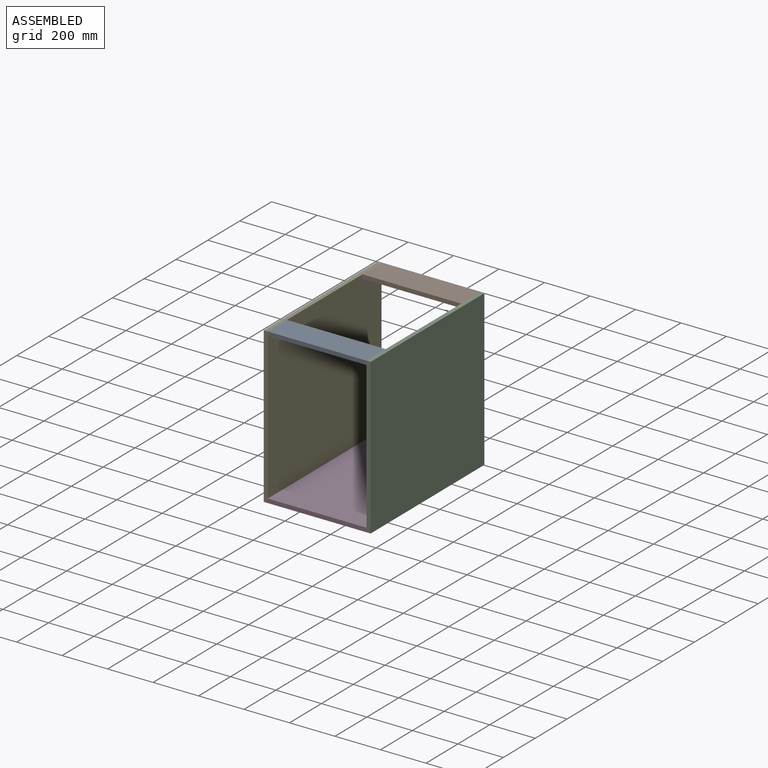
[diagram: assembled view]
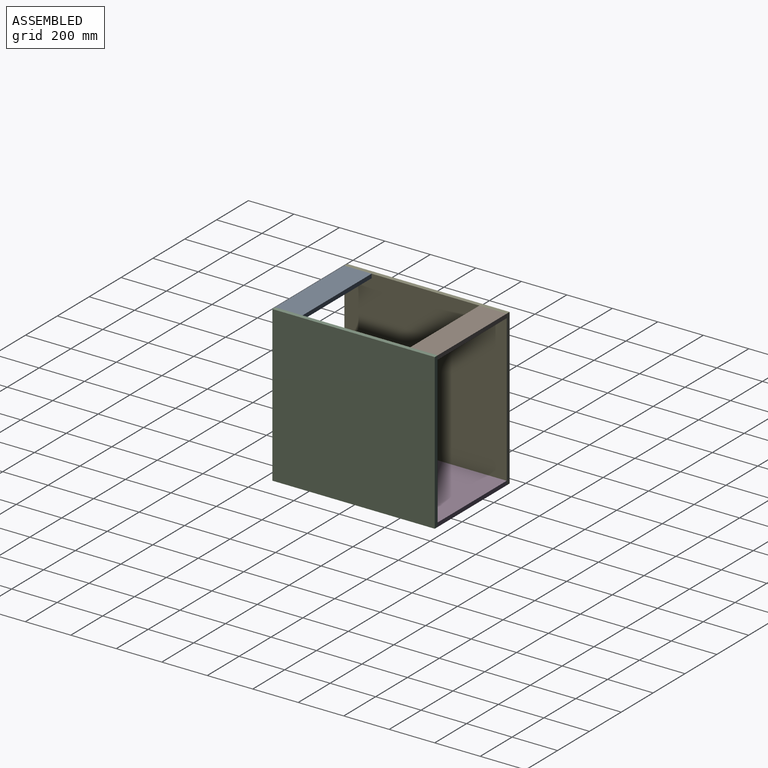
[diagram: assembled view, second angle]
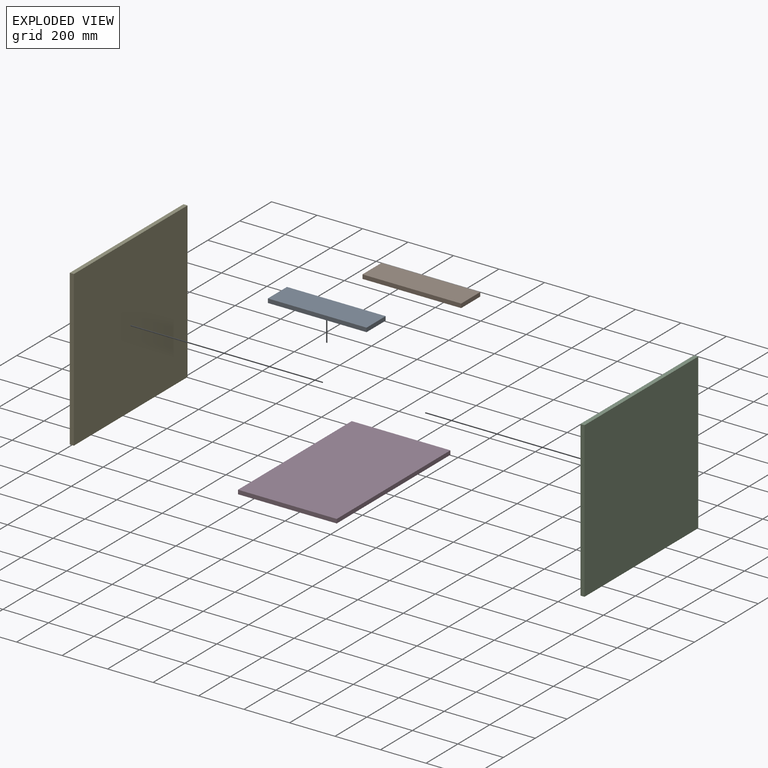
[diagram: exploded view]
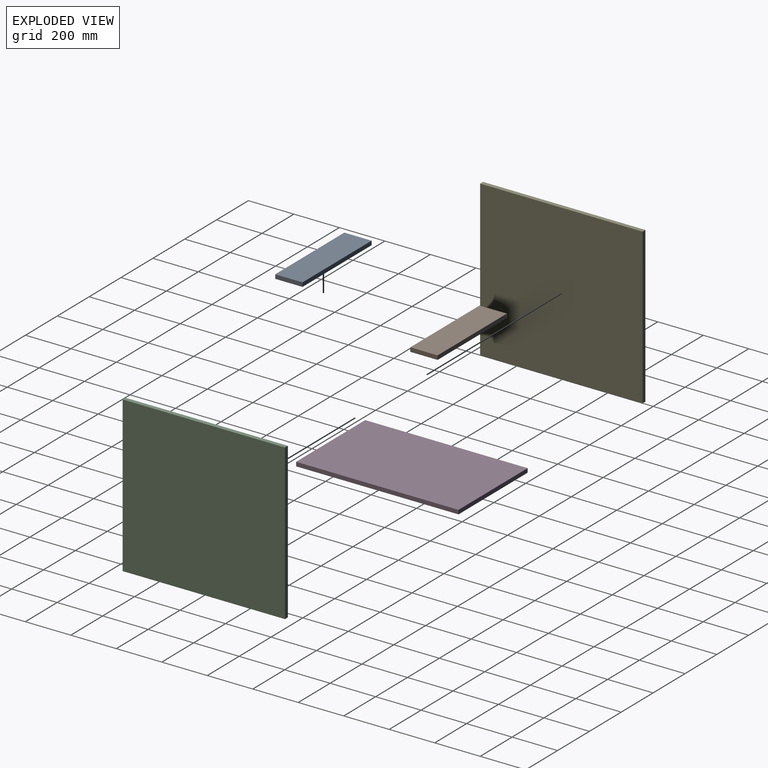
[diagram: exploded view, second angle]
ASSEMBLY  parts=5 mates=4
PART A: 6 faces, bbox 434x120x18 mm
  f0: plane 434x18mm, normal (0,1,0), area 7812mm2, adj f1,f3,f4,f5
  f1: plane 120x18mm, normal (-1,0,0), area 2160mm2, adj f0,f2,f4,f5
  f2: plane 434x18mm, normal (0,-1,0), area 7812mm2, adj f1,f3,f4,f5
  f3: plane 120x18mm, normal (1,0,0), area 2160mm2, adj f0,f2,f4,f5
  f4: plane 434x120mm, normal (0,0,1), area 52080mm2, adj f0,f1,f2,f3
  f5: plane 434x120mm, normal (0,0,-1), area 52080mm2, adj f0,f1,f2,f3
PART B: same geometry as A
PART C: 6 faces, bbox 18x714x682 mm
  f0: plane 682x18mm, normal (0,-1,0), area 12276mm2, adj f1,f3,f4,f5
  f1: plane 714x18mm, normal (0,0,-1), area 12852mm2, adj f0,f2,f4,f5
  f2: plane 682x18mm, normal (0,1,0), area 12276mm2, adj f1,f3,f4,f5
  f3: plane 714x18mm, normal (0,0,1), area 12852mm2, adj f0,f2,f4,f5
  f4: plane 714x682mm, normal (1,0,0), area 486948mm2, adj f0,f1,f2,f3
  f5: plane 714x682mm, normal (-1,0,0), area 486948mm2, adj f0,f1,f2,f3
PART D: 6 faces, bbox 434x714x18 mm
  f0: plane 434x18mm, normal (0,1,0), area 7812mm2, adj f1,f3,f4,f5
  f1: plane 714x18mm, normal (-1,0,0), area 12852mm2, adj f0,f2,f4,f5
  f2: plane 434x18mm, normal (0,-1,0), area 7812mm2, adj f1,f3,f4,f5
  f3: plane 714x18mm, normal (1,0,0), area 12852mm2, adj f0,f2,f4,f5
  f4: plane 714x434mm, normal (0,0,1), area 309876mm2, adj f0,f1,f2,f3
  f5: plane 714x434mm, normal (0,0,-1), area 309876mm2, adj f0,f1,f2,f3
PART E: same geometry as C
PLACE A t=(215.73,102.29,612.61)mm
PLACE B t=(215.73,696.29,612.61)mm
PLACE C t=(215.73,102.29,-33.39)mm
PLACE D t=(215.73,102.29,-33.39)mm
PLACE E t=(-236.27,102.29,-33.39)mm
MATE fastened A.f4 <-> C.f3  axis (0,0,1) through (6316.38,1259.97,648.61)mm
MATE fastened B.f4 <-> C.f3  axis (0,0,1) through (6316.38,1973.97,648.61)mm
MATE fastened E.f4 <-> D.f1  axis (1,0,0) through (5882.38,1259.97,-33.39)mm
MATE fastened D.f3 <-> C.f5  axis (1,0,0) through (6316.38,1259.97,-33.39)mm
